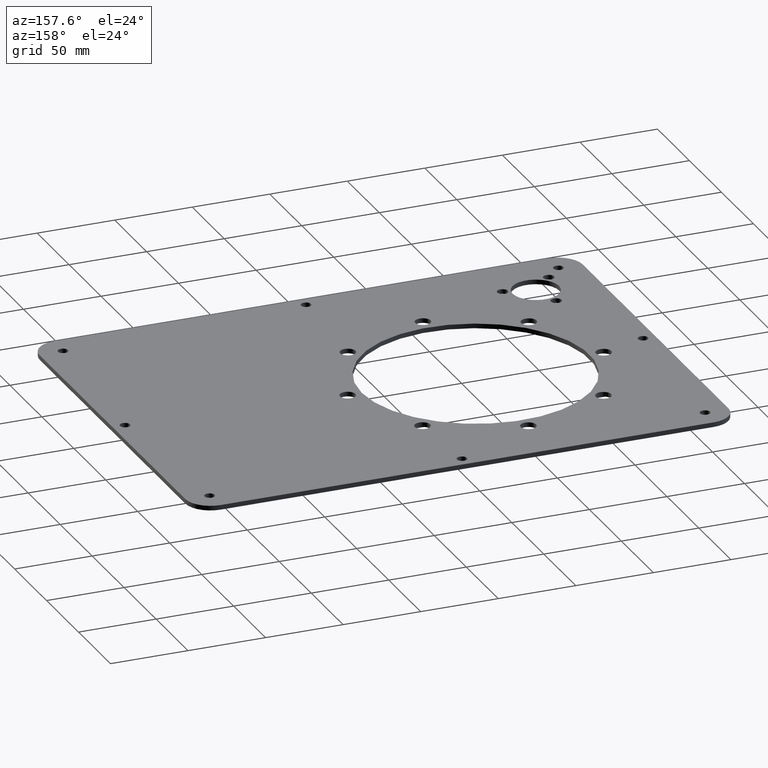
[diagram: clean part render]
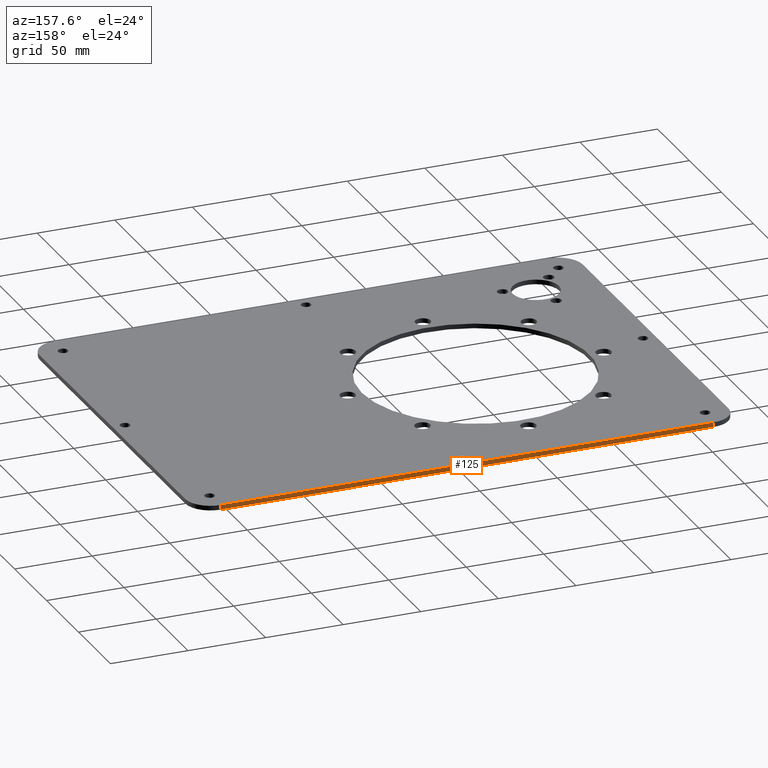
[diagram: same view with one face highlighted and labeled with its STEP entity id]
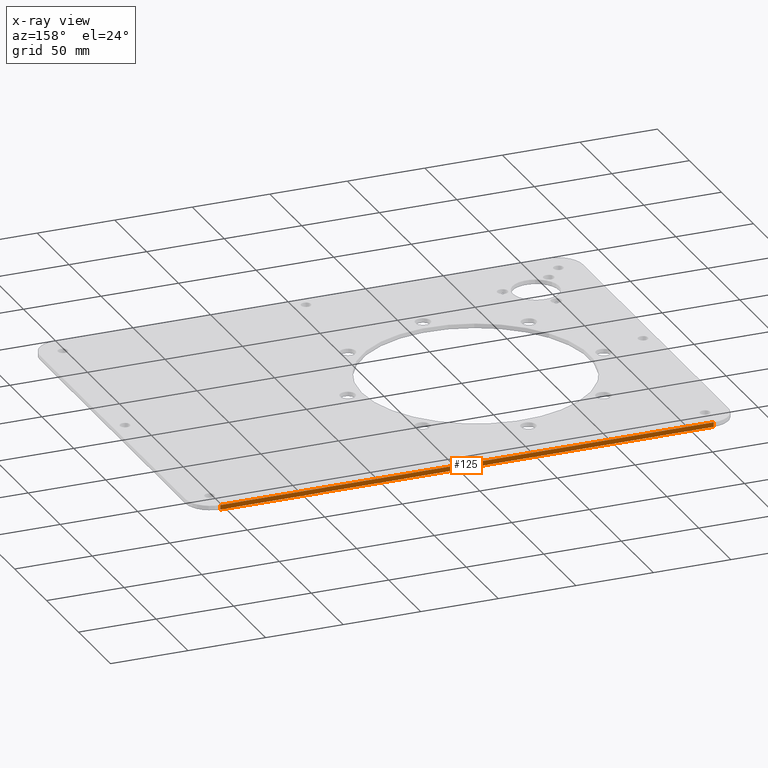
[diagram: x-ray of the same camera — body ghosted, the highlighted face saturated]
A machine part, auxiliary view. The second image highlights one B-rep face of the part: STEP entity #125.
The next image is the same camera in x-ray: the body ghosted, the highlighted face saturated — about 0% of this face is hidden behind the body in this view.
In plain terms, the highlighted planar face has unit normal (0, -1, 0).
Its self-contained STEP definition (entity closure, byte-faithful):
#118=PLANE('',#626);
#125=ADVANCED_FACE('',(#181),#118,.F.);
#181=FACE_OUTER_BOUND('',#191,.T.);
#191=EDGE_LOOP('',(#320,#321,#322,#323));
#284=LINE('',#888,#300);
#286=LINE('',#894,#302);
#287=LINE('',#896,#303);
#288=LINE('',#898,#304);
#300=VECTOR('',#708,1.);
#302=VECTOR('',#714,1.);
#303=VECTOR('',#715,1.);
#304=VECTOR('',#716,1.);
#320=ORIENTED_EDGE('',*,*,#510,.T.);
#321=ORIENTED_EDGE('',*,*,#511,.F.);
#322=ORIENTED_EDGE('',*,*,#512,.F.);
#323=ORIENTED_EDGE('',*,*,#507,.T.);
#449=VERTEX_POINT('',#887);
#450=VERTEX_POINT('',#889);
#452=VERTEX_POINT('',#895);
#453=VERTEX_POINT('',#897);
#507=EDGE_CURVE('',#450,#449,#284,.T.);
#510=EDGE_CURVE('',#449,#452,#286,.T.);
#511=EDGE_CURVE('',#453,#452,#287,.T.);
#512=EDGE_CURVE('',#450,#453,#288,.T.);
#626=AXIS2_PLACEMENT_3D('',#899,#717,#718);
#708=DIRECTION('',(0.,0.,-1.));
#714=DIRECTION('',(-1.,0.,0.));
#715=DIRECTION('',(0.,0.,-1.));
#716=DIRECTION('',(-1.,0.,0.));
#717=DIRECTION('',(0.,-1.,0.));
#718=DIRECTION('',(0.,0.,-1.));
#887=CARTESIAN_POINT('',(4159.,-2870.,0.));
#888=CARTESIAN_POINT('',(4159.,-2870.,3.));
#889=CARTESIAN_POINT('',(4159.,-2870.,3.));
#894=CARTESIAN_POINT('',(4159.,-2870.,0.));
#895=CARTESIAN_POINT('',(3841.,-2870.,0.));
#896=CARTESIAN_POINT('',(3841.,-2870.,3.));
#897=CARTESIAN_POINT('',(3841.,-2870.,3.));
#898=CARTESIAN_POINT('',(4159.,-2870.,3.));
#899=CARTESIAN_POINT('',(4159.,-2870.,3.));